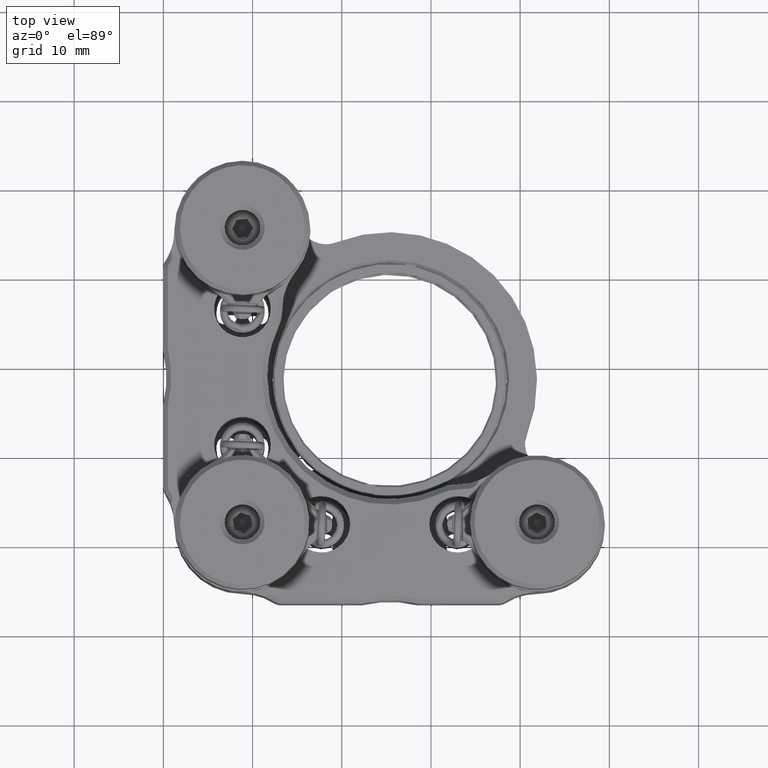
[diagram: clean part render]
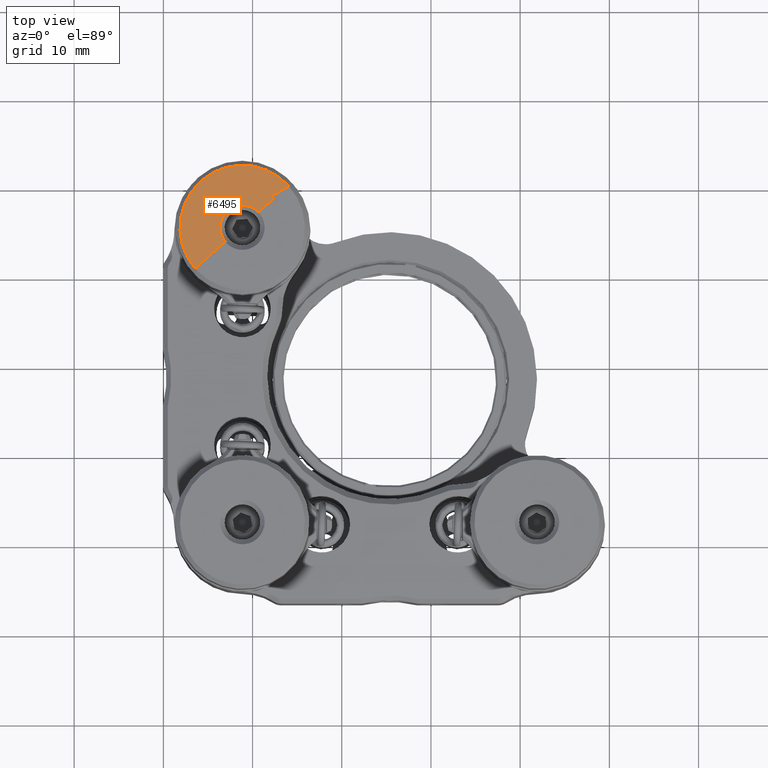
[diagram: same view with one face highlighted and labeled with its STEP entity id]
A machine part, top view. The second image highlights one B-rep face of the part: STEP entity #6495.
In plain terms, the highlighted planar face has unit normal (-0, -0, -1).
Its self-contained STEP definition (entity closure, byte-faithful):
#11 = CIRCLE ( 'NONE', #5169, 6.999999999999991118 ) ;
#234 = AXIS2_PLACEMENT_3D ( 'NONE', #3918, #10473, #6061 ) ;
#471 = LINE ( 'NONE', #8417, #9685 ) ;
#489 = DIRECTION ( 'NONE',  ( 0.000000000000000000, -1.000000000000000000, 1.225254409782124196E-16 ) ) ;
#1087 = VECTOR ( 'NONE', #6500, 1000.000000000000000 ) ;
#1413 = CARTESIAN_POINT ( 'NONE',  ( 0.000000000000000000, -2.497336235949055183, -0.1153764474052275529 ) ) ;
#1426 = AXIS2_PLACEMENT_3D ( 'NONE', #14482, #14176, #21044 ) ;
#1524 = VECTOR ( 'NONE', #489, 1000.000000000000000 ) ;
#1870 = ORIENTED_EDGE ( 'NONE', *, *, #13308, .T. ) ;
#2006 = CARTESIAN_POINT ( 'NONE',  ( 0.000000000000000000, 0.000000000000000000, 0.000000000000000000 ) ) ;
#2711 = DIRECTION ( 'NONE',  ( -1.000000000000000000, -0.000000000000000000, -0.000000000000000000 ) ) ;
#2923 = VERTEX_POINT ( 'NONE', #14181 ) ;
#3074 = DIRECTION ( 'NONE',  ( -1.000000000000000000, -0.000000000000000000, -0.000000000000000000 ) ) ;
#3313 = EDGE_CURVE ( 'NONE', #17524, #2923, #7192, .T. ) ;
#3606 = ORIENTED_EDGE ( 'NONE', *, *, #3313, .F. ) ;
#3918 = CARTESIAN_POINT ( 'NONE',  ( 0.000000000000000000, 0.000000000000000000, 0.000000000000000000 ) ) ;
#4086 = VERTEX_POINT ( 'NONE', #15432 ) ;
#4413 = EDGE_CURVE ( 'NONE', #4086, #14586, #17804, .T. ) ;
#4599 = EDGE_CURVE ( 'NONE', #10298, #4086, #471, .T. ) ;
#5169 = AXIS2_PLACEMENT_3D ( 'NONE', #20753, #2711, #19241 ) ;
#6061 = DIRECTION ( 'NONE',  ( 0.000000000000000000, 0.000000000000000000, -1.000000000000000000 ) ) ;
#6329 = VERTEX_POINT ( 'NONE', #9635 ) ;
#6495 = ADVANCED_FACE ( 'NONE', ( #12071 ), #18631, .F. ) ;
#6500 = DIRECTION ( 'NONE',  ( 0.000000000000000000, 0.7469592730965012306, 0.6648697950239179644 ) ) ;
#6838 = CARTESIAN_POINT ( 'NONE',  ( 0.000000000000000000, 4.886748387684781925, -0.1153764474052284689 ) ) ;
#7192 = LINE ( 'NONE', #6838, #1524 ) ;
#7632 = VECTOR ( 'NONE', #16639, 1000.000000000000000 ) ;
#8417 = CARTESIAN_POINT ( 'NONE',  ( 0.000000000000000000, 6.999999999999991118, 1.310372075087666953E-15 ) ) ;
#8768 = ORIENTED_EDGE ( 'NONE', *, *, #4599, .F. ) ;
#8903 = AXIS2_PLACEMENT_3D ( 'NONE', #14770, #3074, #18219 ) ;
#9635 = CARTESIAN_POINT ( 'NONE',  ( 0.000000000000000000, 0.000000000000000000, -6.999999999999991118 ) ) ;
#9684 = CARTESIAN_POINT ( 'NONE',  ( 0.000000000000000000, 3.061616997868393988E-16, -2.500000000000009326 ) ) ;
#9685 = VECTOR ( 'NONE', #14959, 1000.000000000000114 ) ;
#9770 = CARTESIAN_POINT ( 'NONE',  ( 0.000000000000000000, 4.886748387684781925, -0.1153764474052284689 ) ) ;
#10063 = VERTEX_POINT ( 'NONE', #9684 ) ;
#10298 = VERTEX_POINT ( 'NONE', #11019 ) ;
#10353 = CIRCLE ( 'NONE', #20645, 2.500000000000009326 ) ;
#10473 = DIRECTION ( 'NONE',  ( 1.000000000000000000, 0.000000000000000000, 0.000000000000000000 ) ) ;
#11019 = CARTESIAN_POINT ( 'NONE',  ( 0.000000000000000000, 6.999999999999991118, 1.310372075087666953E-15 ) ) ;
#11233 = EDGE_CURVE ( 'NONE', #10298, #6329, #11, .T. ) ;
#11669 = DIRECTION ( 'NONE',  ( 1.000000000000000000, 0.000000000000000000, 0.000000000000000000 ) ) ;
#11678 = LINE ( 'NONE', #9770, #7632 ) ;
#12071 = FACE_OUTER_BOUND ( 'NONE', #17972, .T. ) ;
#12085 = ORIENTED_EDGE ( 'NONE', *, *, #4413, .F. ) ;
#12519 = EDGE_CURVE ( 'NONE', #17524, #10063, #17587, .T. ) ;
#12620 = VERTEX_POINT ( 'NONE', #16632 ) ;
#13308 = EDGE_CURVE ( 'NONE', #6329, #2923, #16446, .T. ) ;
#14176 = DIRECTION ( 'NONE',  ( 1.000000000000000000, 0.000000000000000000, 0.000000000000000000 ) ) ;
#14181 = CARTESIAN_POINT ( 'NONE',  ( 0.000000000000000000, -6.999049097940664765, -0.1153764474052270117 ) ) ;
#14482 = CARTESIAN_POINT ( 'NONE',  ( 0.000000000000000000, 0.000000000000000000, 0.000000000000000000 ) ) ;
#14586 = VERTEX_POINT ( 'NONE', #16773 ) ;
#14608 = ORIENTED_EDGE ( 'NONE', *, *, #16615, .T. ) ;
#14647 = CARTESIAN_POINT ( 'NONE',  ( 0.000000000000000000, 4.337654456849506346, -0.6041259447237552482 ) ) ;
#14770 = CARTESIAN_POINT ( 'NONE',  ( 0.000000000000000000, 0.000000000000000000, 0.000000000000000000 ) ) ;
#14959 = DIRECTION ( 'NONE',  ( 0.000000000000000000, -0.9752082065507530206, -0.2212892990545717309 ) ) ;
#15432 = CARTESIAN_POINT ( 'NONE',  ( 0.000000000000000000, 4.337654456849506346, -0.6041259447237552482 ) ) ;
#16446 = CIRCLE ( 'NONE', #8903, 6.999999999999991118 ) ;
#16615 = EDGE_CURVE ( 'NONE', #10063, #12620, #10353, .T. ) ;
#16632 = CARTESIAN_POINT ( 'NONE',  ( 0.000000000000000000, 2.497336235949055183, -0.1153764474052281774 ) ) ;
#16639 = DIRECTION ( 'NONE',  ( 0.000000000000000000, -1.000000000000000000, 1.225254409782124196E-16 ) ) ;
#16773 = CARTESIAN_POINT ( 'NONE',  ( 0.000000000000000000, 4.886748387684781925, -0.1153764474052284689 ) ) ;
#16810 = ORIENTED_EDGE ( 'NONE', *, *, #11233, .T. ) ;
#17524 = VERTEX_POINT ( 'NONE', #1413 ) ;
#17587 = CIRCLE ( 'NONE', #1426, 2.500000000000009326 ) ;
#17804 = LINE ( 'NONE', #14647, #1087 ) ;
#17972 = EDGE_LOOP ( 'NONE', ( #16810, #1870, #3606, #20090, #14608, #17996, #12085, #8768 ) ) ;
#17996 = ORIENTED_EDGE ( 'NONE', *, *, #19091, .F. ) ;
#18219 = DIRECTION ( 'NONE',  ( 0.000000000000000000, 0.000000000000000000, -1.000000000000000000 ) ) ;
#18631 = PLANE ( 'NONE',  #234 ) ;
#19091 = EDGE_CURVE ( 'NONE', #14586, #12620, #11678, .T. ) ;
#19241 = DIRECTION ( 'NONE',  ( 0.000000000000000000, 8.881784197001252323E-16, -1.000000000000000000 ) ) ;
#20090 = ORIENTED_EDGE ( 'NONE', *, *, #12519, .T. ) ;
#20645 = AXIS2_PLACEMENT_3D ( 'NONE', #2006, #11669, #21136 ) ;
#20753 = CARTESIAN_POINT ( 'NONE',  ( 0.000000000000000000, 0.000000000000000000, 0.000000000000000000 ) ) ;
#21044 = DIRECTION ( 'NONE',  ( 0.000000000000000000, 0.000000000000000000, -1.000000000000000000 ) ) ;
#21136 = DIRECTION ( 'NONE',  ( 0.000000000000000000, 0.000000000000000000, -1.000000000000000000 ) ) ;